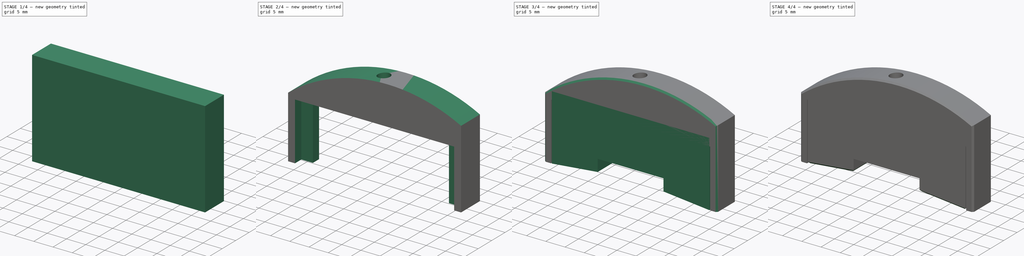
[diagram: build sequence overview — one tinted view per stage of 4, left to right]
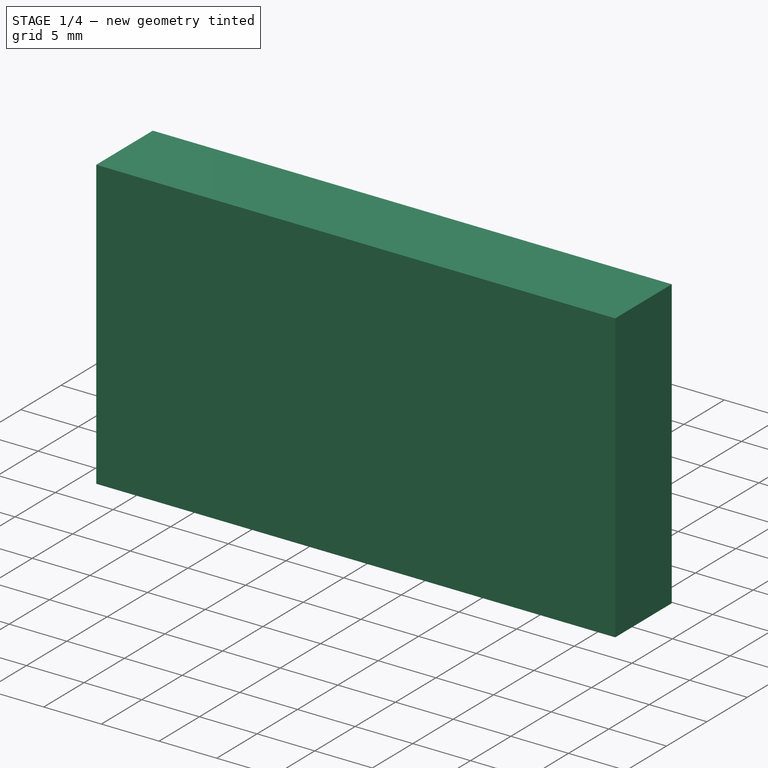
[diagram: stage 1 of 4 — iso view after this stage's code; geometry added in this stage tinted green]
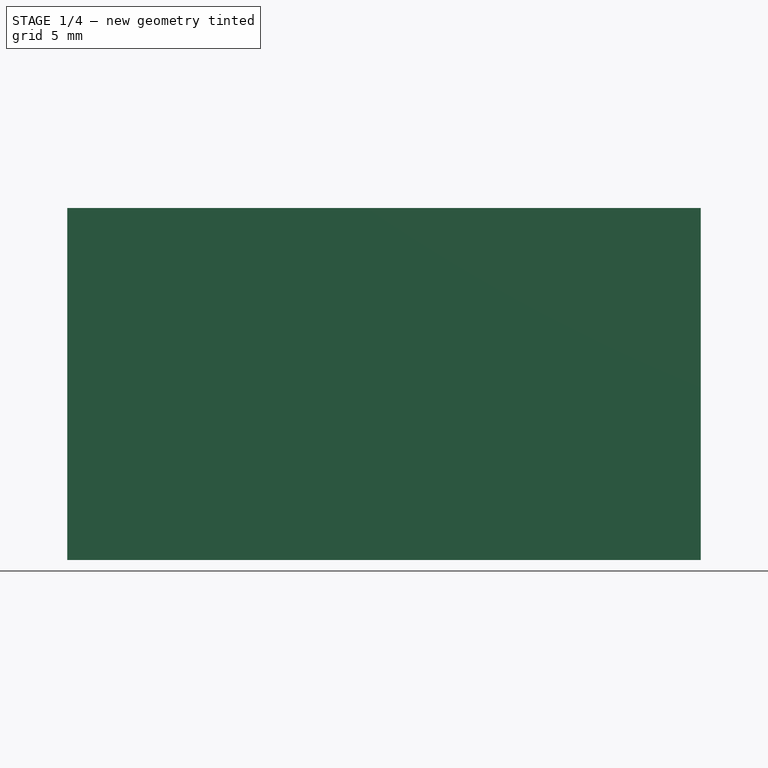
[diagram: stage 1 of 4 — front view after this stage's code; geometry added in this stage tinted green]
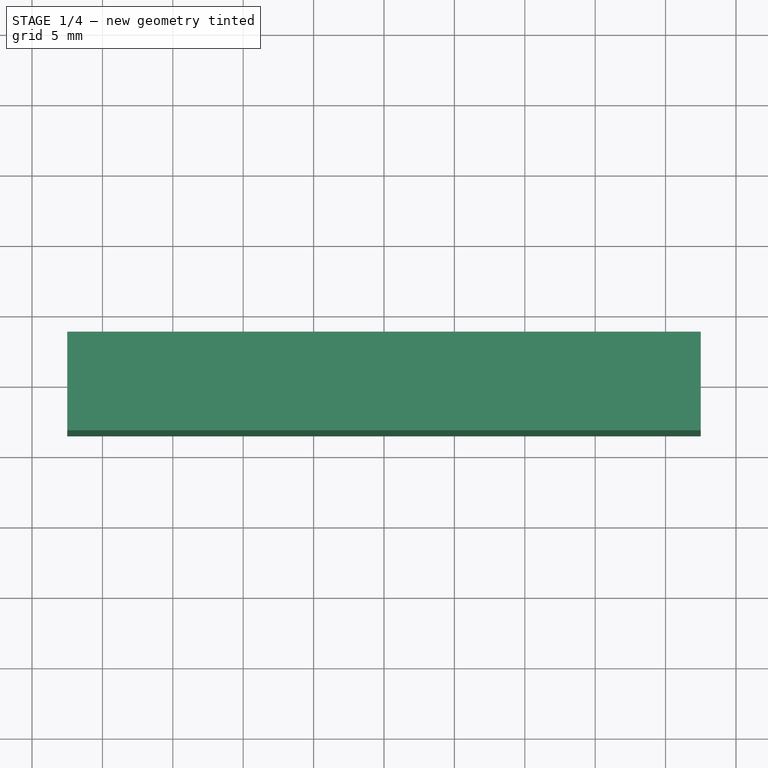
[diagram: stage 1 of 4 — top view after this stage's code; geometry added in this stage tinted green]
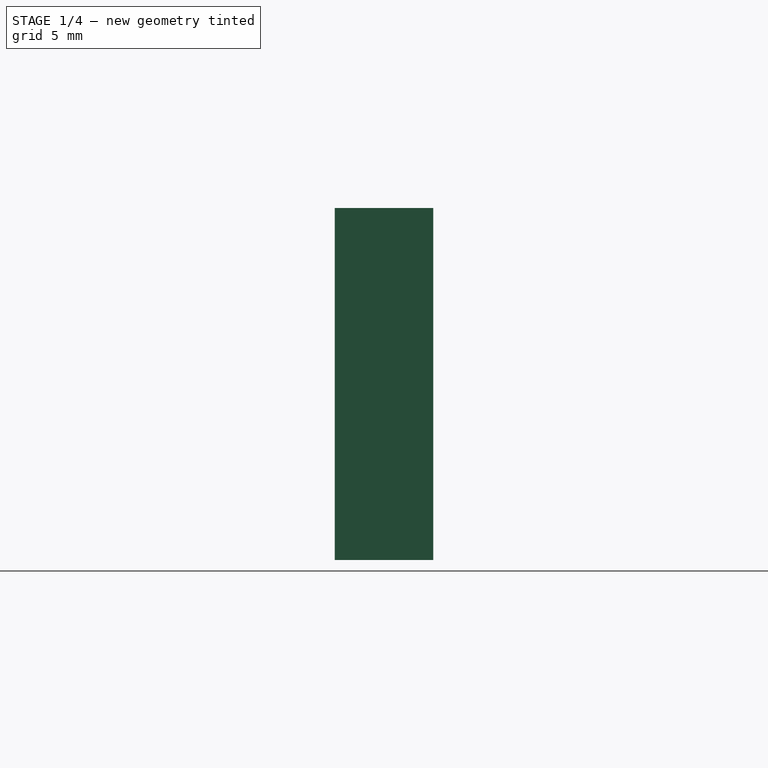
[diagram: stage 1 of 4 — right view after this stage's code; geometry added in this stage tinted green]
FCSTD DOCUMENT  (FreeCAD 1.0R39319 (Git))
Label: violin_string_lifter
License: All rights reserved
LicenseURL: https://en.wikipedia.org/wiki/All_rights_reserved
objects: Sketcher::SketchObject×8, PartDesign::Pocket×6, PartDesign::Pad×2, PartDesign::Chamfer×2, PartDesign::Body×2
note: 48 computed .brp shape members not serialized (recipe doc carries the construction recipe); baked Part::Feature solids carry a one-line shape summary decoded from their .brp

FEATURE [Sketcher::SketchObject] Sketch
  ArcFitTolerance = 1e-06
  AttachmentSupport = -> [XZ_Plane]
  FullyConstrained = true
  MakeInternals = false
  MapMode = 5
  Placement = pos=(0,0,0) rot=(1,0,0;1.5708rad)
  sketch-geometry (9):
    g0: LineSegment StartX=20.5 StartY=0 StartZ=0 EndX=8.56015 EndY=1.2 EndZ=0
    g1: LineSegment StartX=8.56015 StartY=1.2 StartZ=0 EndX=8.56015 EndY=4.3 EndZ=0
    g2: LineSegment StartX=-8.56015 StartY=1.2 StartZ=0 EndX=-8.56015 EndY=4.3 EndZ=0
    g3: LineSegment StartX=-8.56015 StartY=1.2 StartZ=0 EndX=-20.5 EndY=0 EndZ=0
    g4: LineSegment StartX=-8.56015 StartY=4.3 StartZ=0 EndX=8.56015 EndY=4.3 EndZ=0
    g5: GeomPoint X=0 Y=4.3 Z=0
    g6: LineSegment StartX=-20.5 StartY=0 StartZ=0 EndX=-20.5 EndY=17 EndZ=0
    g7: LineSegment StartX=20.5 StartY=0 StartZ=0 EndX=20.5 EndY=17 EndZ=0
    g8: LineSegment StartX=20.5 StartY=17 StartZ=0 EndX=-20.5 EndY=17 EndZ=0
  constraints (25):
    c: PointOnObject(g0,g-1)
    c: Coincident(g1,g0)
    c: Vertical(g1)
    c: Vertical(g2)
    c: Coincident(g3,g2)
    c: PointOnObject(g3,g-1)
    c: Coincident(g4,g2)
    c: Coincident(g4,g1)
    c: Horizontal(g4)
    c: PointOnObject(g5,g-2)
    c: Symmetric(g4,g4,g5)
    c: DistanceX(g3,g0) = 41
    c: Horizontal(g2,g0)
    c: DistanceY(g-1,g2) = 1.2
    c: Equal(g0,g3)
    c: Distance(g0) = 12
    c: DistanceY(g-1,g2) = 4.3
    c: Coincident(g6,g3)
    c: Vertical(g6)
    c: Coincident(g7,g0)
    c: Vertical(g7)
    c: Coincident(g8,g7)
    c: Coincident(g8,g6)
    c: Horizontal(g8)
    c: DistanceY(g6,g6) = 17
FEATURE [PartDesign::Pad] Pad
  Direction = (0,-1,2e-16)
  Length = 3.5
  Length2 = 3.5
  Placement = pos=(0,0,0) rot=(1,0,0;1.5708rad)
  Profile = -> Sketch
  ReferenceAxis = -> Sketch [N_Axis]
  Refine = true
  Suppressed = false
  Type = 4
FEATURE [Sketcher::SketchObject] Sketch002
  ArcFitTolerance = 1e-06
  AttachmentSupport = -> [XZ_Plane001]
  FullyConstrained = true
  MakeInternals = false
  MapMode = 5
  Placement = pos=(0,0,0) rot=(1,0,0;1.5708rad)
  sketch-geometry (4):
    g0: LineSegment StartX=-22.5 StartY=25 StartZ=0 EndX=-22.5 EndY=0 EndZ=0
    g1: LineSegment StartX=-22.5 StartY=-1e-16 StartZ=0 EndX=22.5 EndY=-1e-16 EndZ=0
    g2: LineSegment StartX=22.5 StartY=-1e-16 StartZ=0 EndX=22.5 EndY=25 EndZ=0
    g3: LineSegment StartX=22.5 StartY=25 StartZ=0 EndX=-22.5 EndY=25 EndZ=0
  constraints (11):
    c: Coincident(g0,g1)
    c: Coincident(g1,g2)
    c: Coincident(g2,g3)
    c: Coincident(g3,g0)
    c: Vertical(g0)
    c: Vertical(g2)
    c: Horizontal(g1)
    c: Horizontal(g3)
    c: Symmetric(g1,g1,g-1)
    c: DistanceX(g1,g1) = 45
    c: DistanceY(g0,g0) = 25
FEATURE [PartDesign::Pad] Pad001
  Direction = (0,-1,2e-16)
  Length = 3.5
  Length2 = 3.5
  Placement = pos=(0,0,0) rot=(1,0,0;1.5708rad)
  Profile = -> Sketch002
  ReferenceAxis = -> Sketch002 [N_Axis]
  Refine = true
  Suppressed = false
  Type = 4
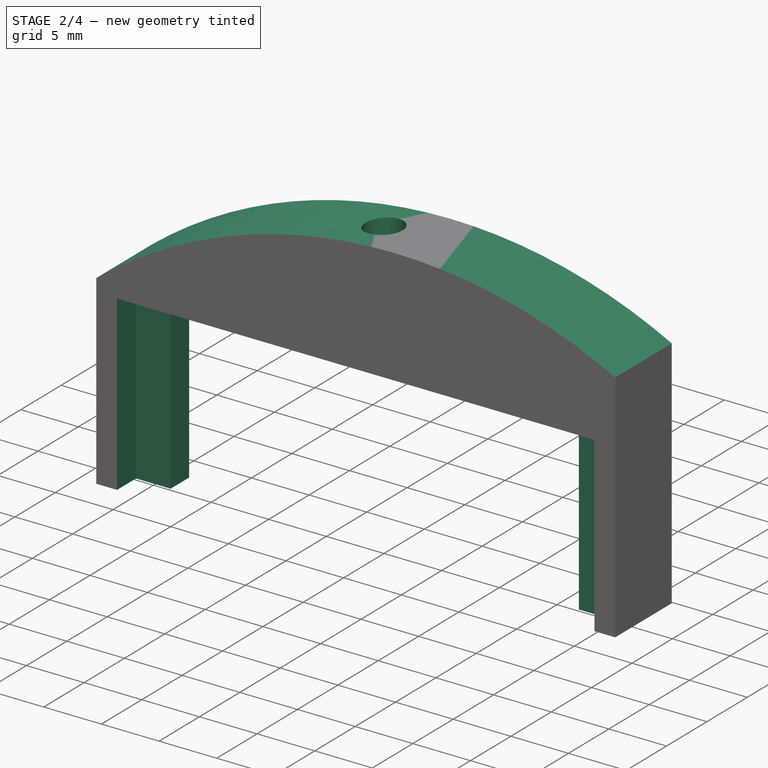
[diagram: stage 2 of 4 — iso view after this stage's code; geometry added in this stage tinted green]
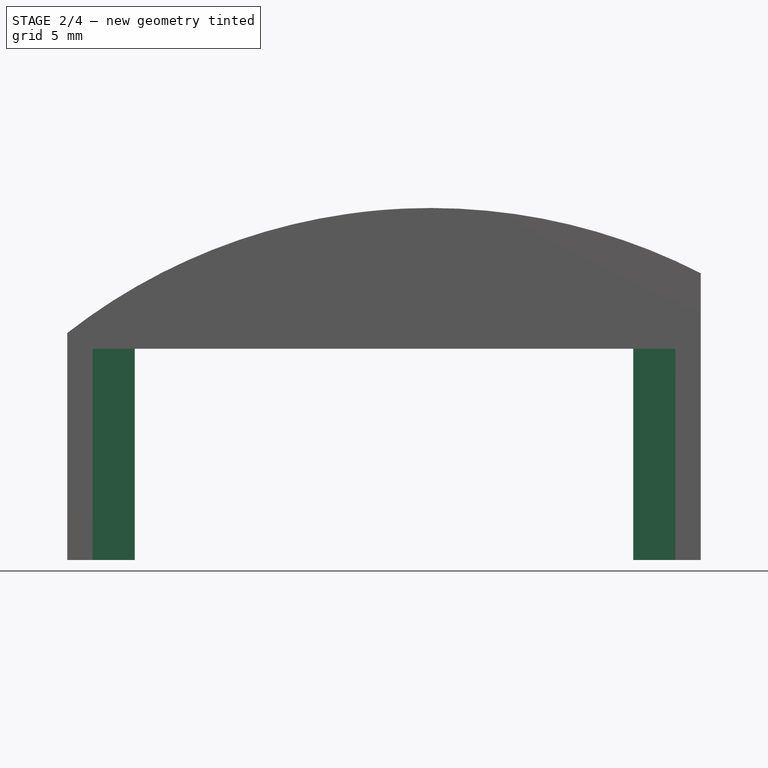
[diagram: stage 2 of 4 — front view after this stage's code; geometry added in this stage tinted green]
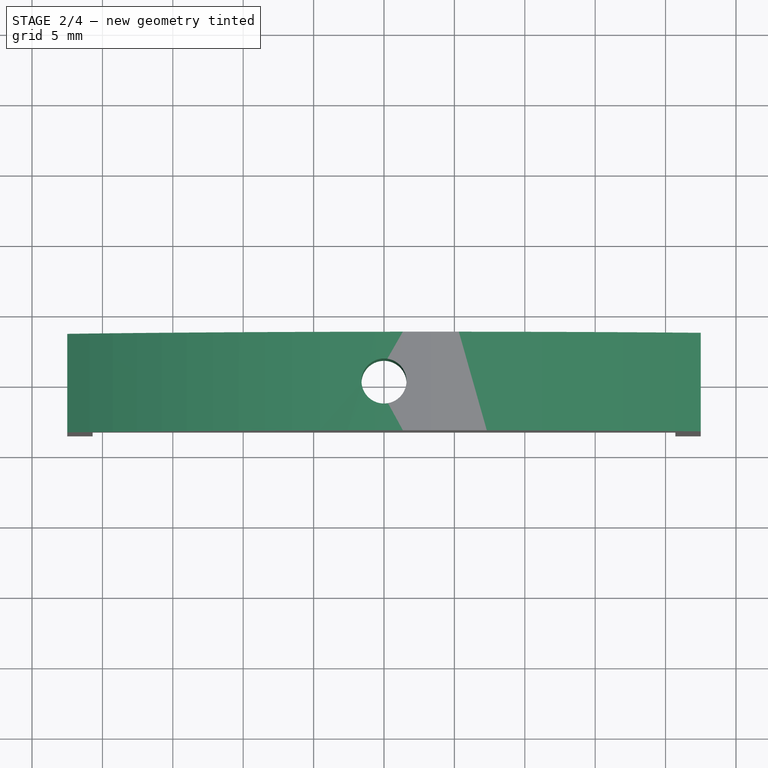
[diagram: stage 2 of 4 — top view after this stage's code; geometry added in this stage tinted green]
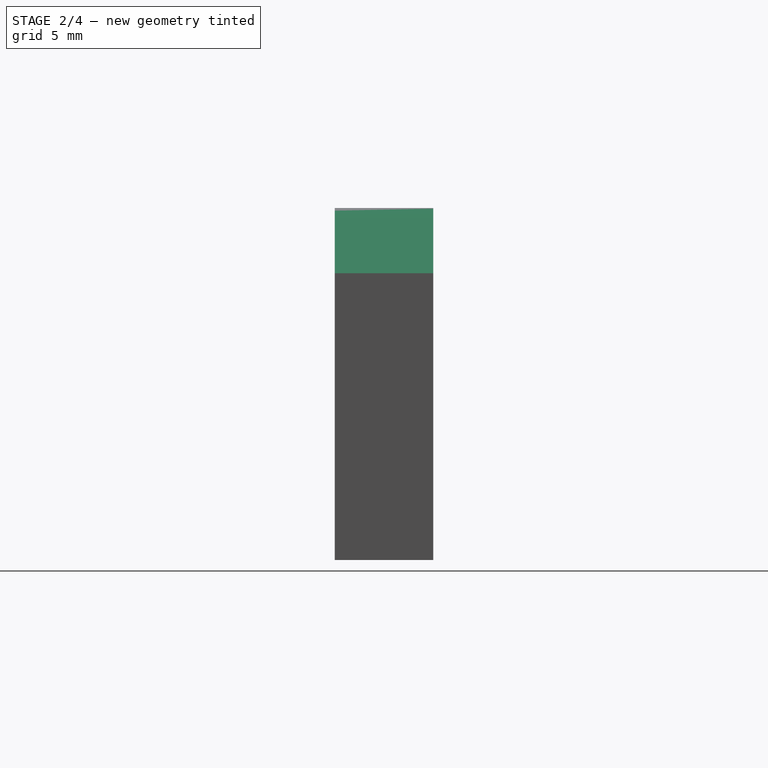
[diagram: stage 2 of 4 — right view after this stage's code; geometry added in this stage tinted green]
FEATURE [Sketcher::SketchObject] Sketch003
  ArcFitTolerance = 1e-06
  AttachmentSupport = -> [Pad001]
  FullyConstrained = true
  MakeInternals = false
  MapMode = 5
  Placement = pos=(0,0,-1e-16) rot=(1,0,0;3.14159rad)
  expr: Constraints[32] = Sketch001.Constraints.int_len + 0.4 mm
  expr: Constraints[37] = Sketch001.Constraints.out_len + 0.4 mm
  sketch-geometry (15):
    g0: LineSegment StartX=-17.7 StartY=1.15 StartZ=0 EndX=-17.7 EndY=-1.15 EndZ=0
    g1: LineSegment StartX=17.7 StartY=1.15 StartZ=0 EndX=17.7 EndY=-1.15 EndZ=0
    g2: GeomPoint X=-17.7 Y=0 Z=0
    g3: LineSegment StartX=-17.7 StartY=1.15 StartZ=0 EndX=-20.7 EndY=1.15 EndZ=0
    g4: LineSegment StartX=-20.7 StartY=1.15 StartZ=0 EndX=-20.7 EndY=5 EndZ=0
    g5: LineSegment StartX=-17.7 StartY=-1.15 StartZ=0 EndX=-20.7 EndY=-1.15 EndZ=0
    g6: LineSegment StartX=-20.7 StartY=-1.15 StartZ=0 EndX=-20.7 EndY=-5 EndZ=0
    g7: LineSegment StartX=17.7 StartY=1.15 StartZ=0 EndX=20.7 EndY=1.15 EndZ=0
    g8: LineSegment StartX=17.7 StartY=-1.15 StartZ=0 EndX=20.7 EndY=-1.15 EndZ=0
    g9: LineSegment StartX=20.7 StartY=-1.15 StartZ=0 EndX=20.7 EndY=-5 EndZ=0
    g10: LineSegment StartX=20.7 StartY=1.15 StartZ=0 EndX=20.7 EndY=5 EndZ=0
    g11: LineSegment StartX=20.7 StartY=5 StartZ=0 EndX=-20.7 EndY=5 EndZ=0
    g12: LineSegment StartX=-20.7 StartY=-5 StartZ=0 EndX=20.7 EndY=-5 EndZ=0
    g13: LineSegment [constr] StartX=-17.7 StartY=-1.15 StartZ=0 EndX=17.7 EndY=-1.15 EndZ=0
    g14: GeomPoint [constr] X=0 Y=-1.15 Z=0
  constraints (40):
    c: Vertical(g0)
    c: Vertical(g1)
    c: Horizontal(g0,g1)
    c: Horizontal(g1,g0)
    c: PointOnObject(g2,g-1)
    c: Symmetric(g0,g0,g2)
    c: DistanceY(g0,g0) = 2.3
    c: Coincident(g3,g0)
    c: Horizontal(g3)
    c: Coincident(g4,g3)
    c: Vertical(g4)
    c: Coincident(g5,g0)
    c: Horizontal(g5)
    c: Coincident(g6,g5)
    c: Vertical(g6)
    c: Vertical(g5,g3)
    c: Equal(g6,g4)
    c: Coincident(g7,g1)
    c: Horizontal(g7)
    c: Coincident(g8,g1)
    c: Horizontal(g8)
    c: Coincident(g9,g8)
    c: Vertical(g9)
    c: Coincident(g10,g7)
    c: Vertical(g10)
    c: Coincident(g11,g10)
    c: Coincident(g11,g4)
    c: Horizontal(g11)
    c: Coincident(g12,g6)
    c: Coincident(g12,g9)
    c: Horizontal(g12)
    c: Equal(g8,g7)
    c: DistanceX(g0,g1) = 35.4
    c: Coincident(g13,g0)
    c: Coincident(g13,g1)
    c: Symmetric(g13,g13,g14)
    c: PointOnObject(g14,g-2)
    c: DistanceX(g11,g11) = 41.4
    c: Equal(g7,g3)
    c: DistanceY(g6,g4) = 10
FEATURE [PartDesign::Pocket] Pocket001
  BaseFeature = -> Pad001
  Direction = (0,0,1)
  Length = 15
  Length2 = 5
  Placement = pos=(0,0,0) rot=(1,0,0;1.5708rad)
  Profile = -> Sketch003
  ReferenceAxis = -> Sketch003 [N_Axis]
  Refine = true
  Suppressed = false
  Type = 0
FEATURE [Sketcher::SketchObject] Sketch004
  ArcFitTolerance = 1e-06
  AttachmentSupport = -> [Pocket001]
  FullyConstrained = true
  MakeInternals = false
  MapMode = 5
  Placement = pos=(0,1.1e-14,25) rot=(0,0,1;3.14159rad)
  sketch-geometry (1):
    g0: Circle CenterX=0 CenterY=0 CenterZ=0 NormalX=0 NormalY=0 NormalZ=1 AngleXU=0 Radius=1.6
  constraints (2):
    c: Coincident(g0,g-1)
    c: Diameter(g0) = 3.2
FEATURE [PartDesign::Pocket] Pocket002
  BaseFeature = -> Pocket001
  Direction = (0,0,-1)
  Length = 11
  Length2 = 5
  Placement = pos=(0,0,0) rot=(1,0,0;1.5708rad)
  Profile = -> Sketch004 [Edge1]
  ReferenceAxis = -> Sketch004 [N_Axis]
  Refine = true
  Suppressed = false
  Type = 0
FEATURE [Sketcher::SketchObject] Sketch005
  ArcFitTolerance = 1e-06
  AttachmentSupport = -> [Pocket002]
  ExternalGeometry = -> [Pocket002]
  FullyConstrained = true
  MakeInternals = false
  MapMode = 5
  Placement = pos=(0,-3.5,0) rot=(1,0,0;1.5708rad)
  sketch-geometry (7):
    g0: Circle [constr] CenterX=0 CenterY=-21.9103 CenterZ=0 NormalX=0 NormalY=0 NormalZ=1 AngleXU=0 Radius=42
    g1: ArcOfCircle CenterX=3.32402 CenterY=-17 CenterZ=0 NormalX=0 NormalY=0 NormalZ=1 AngleXU=0 Radius=42 StartAngle=1.09666 EndAngle=2.233
    g2: LineSegment [constr] StartX=-17 StartY=19.7551 StartZ=0 EndX=-15.8667 EndY=16.9774 EndZ=0
    g3: LineSegment [constr] StartX=14.9529 StartY=17.3378 StartZ=0 EndX=17 EndY=22.711 EndZ=0
    g4: LineSegment StartX=-22.5 StartY=16.1228 StartZ=0 EndX=-22.5 EndY=40.3669 EndZ=0
    g5: LineSegment StartX=-22.5 StartY=40.3669 StartZ=0 EndX=22.5 EndY=40.3669 EndZ=0
    g6: LineSegment StartX=22.5 StartY=20.3669 StartZ=0 EndX=22.5 EndY=40.3669 EndZ=0
  constraints (24):
    c: PointOnObject(g0,g-2)
    c: Radius(g0) = 42
    c: Radius(g1) = 42
    c: PointOnObject(g2,g1)
    c: PointOnObject(g2,g0)
    c: Perpendicular(g0,g2)
    c: Distance(g2) = 3
    c: PointOnObject(g3,g0)
    c: PointOnObject(g3,g1)
    c: Distance(g3) = 5.75
    c: Perpendicular(g0,g3)
    c: DistanceX(g-1,g3) = 17
    c: DistanceX(g2,g-1) = 17
    c: Coincident(g4,g1)
    c: Vertical(g4)
    c: Coincident(g5,g4)
    c: Horizontal(g5)
    c: Coincident(g6,g1)
    c: Coincident(g6,g5)
    c: Vertical(g6)
    c: DistanceY(g6,g6) = 20
    c: PointOnObject(g-3,g4)
    c: PointOnObject(g-3,g6)
    c: Tangent(g1,g-3)
FEATURE [PartDesign::Pocket] Pocket003
  BaseFeature = -> Pocket002
  Direction = (0,1,-2e-16)
  Length = 20
  Length2 = 20
  Placement = pos=(0,0,0) rot=(1,0,0;1.5708rad)
  Profile = -> Sketch005
  ReferenceAxis = -> Sketch005 [N_Axis]
  Refine = true
  Suppressed = false
  Type = 4
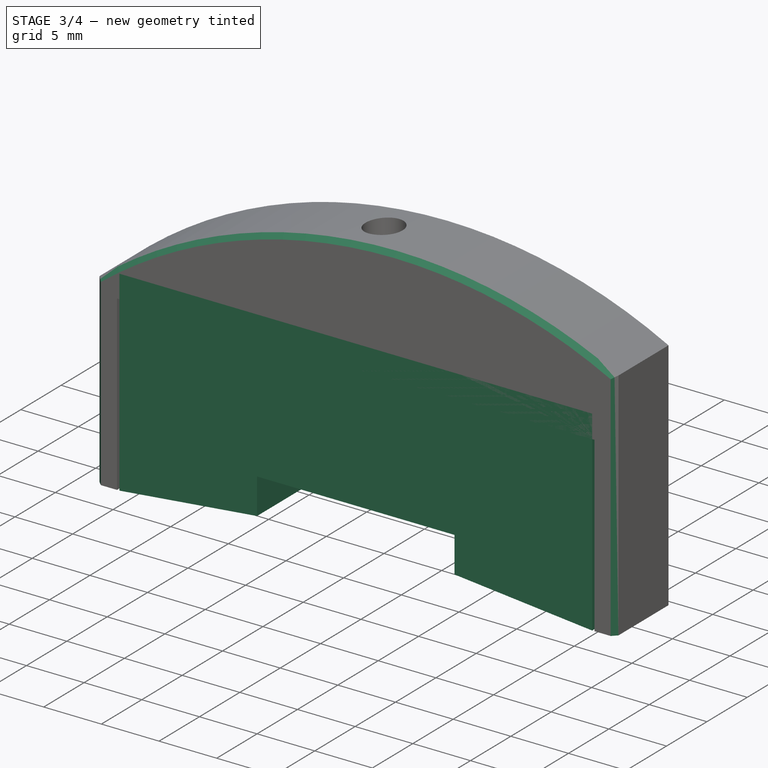
[diagram: stage 3 of 4 — iso view after this stage's code; geometry added in this stage tinted green]
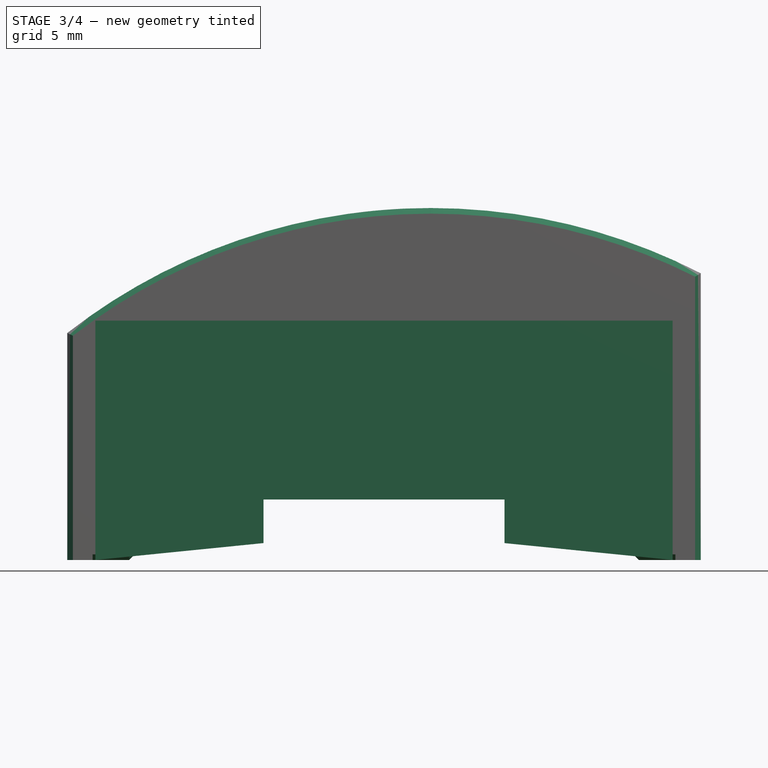
[diagram: stage 3 of 4 — front view after this stage's code; geometry added in this stage tinted green]
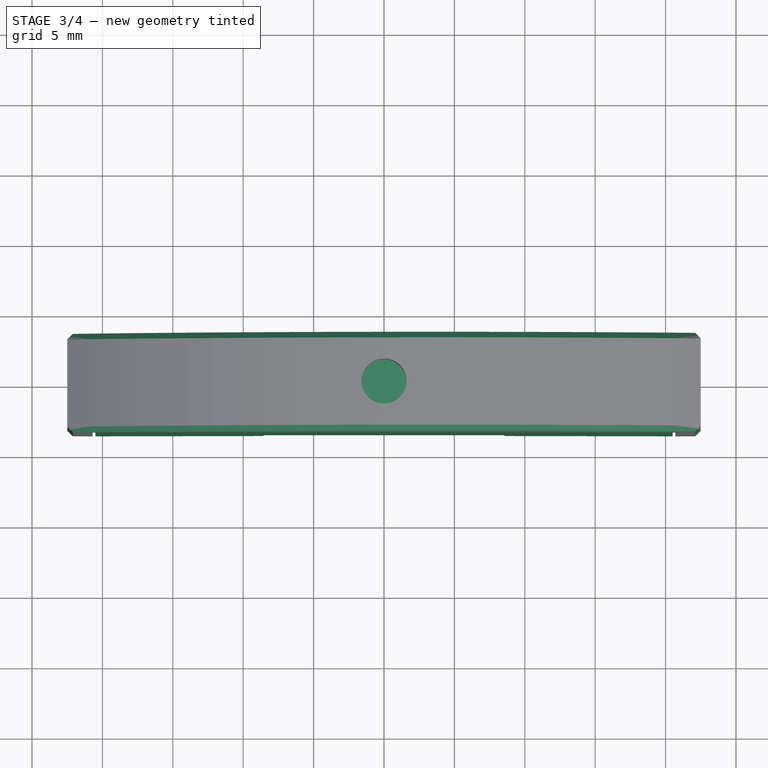
[diagram: stage 3 of 4 — top view after this stage's code; geometry added in this stage tinted green]
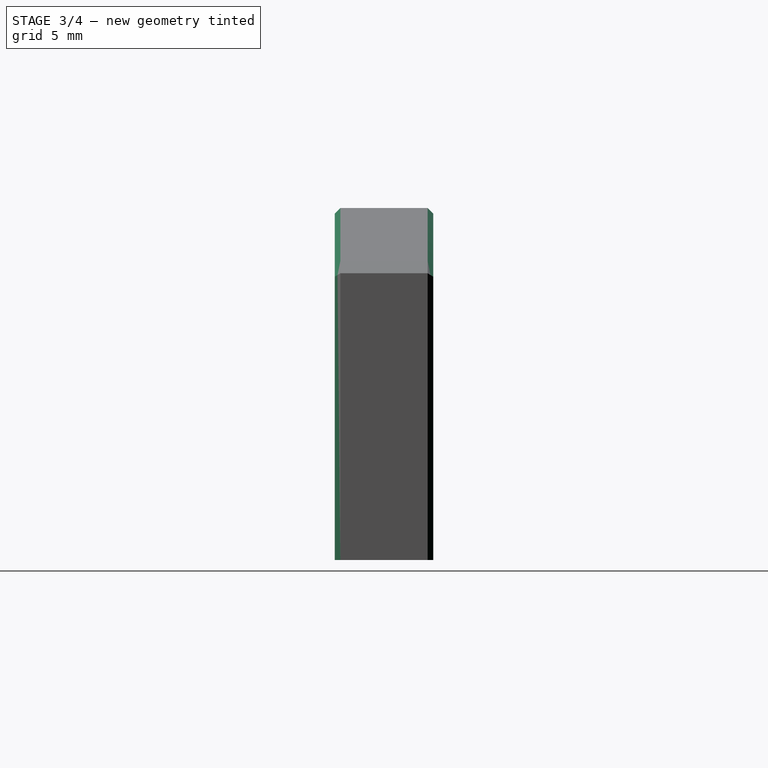
[diagram: stage 3 of 4 — right view after this stage's code; geometry added in this stage tinted green]
FEATURE [Sketcher::SketchObject] Sketch001
  ArcFitTolerance = 1e-06
  AttachmentSupport = -> [Pad]
  ExternalGeometry = -> [Pad]
  FullyConstrained = true
  MakeInternals = false
  MapMode = 5
  Placement = pos=(0,7.5e-15,17) rot=(0,0,1;3.14159rad)
  sketch-geometry (10):
    g0: LineSegment StartX=-20.5 StartY=1.5 StartZ=0 EndX=-20.5 EndY=-1.5 EndZ=0
    g1: LineSegment StartX=-20.5 StartY=-1.5 StartZ=0 EndX=-17.5 EndY=-1.5 EndZ=0
    g2: LineSegment StartX=-17.5 StartY=-1.5 StartZ=0 EndX=-17.5 EndY=1.5 EndZ=0
    g3: LineSegment StartX=-17.5 StartY=1.5 StartZ=0 EndX=-20.5 EndY=1.5 EndZ=0
    g4: LineSegment StartX=20.5 StartY=1.5 StartZ=0 EndX=17.5 EndY=1.5 EndZ=0
    g5: LineSegment StartX=17.5 StartY=1.5 StartZ=0 EndX=17.5 EndY=-1.5 EndZ=0
    g6: LineSegment StartX=17.5 StartY=-1.5 StartZ=0 EndX=20.5 EndY=-1.5 EndZ=0
    g7: LineSegment StartX=20.5 StartY=-1.5 StartZ=0 EndX=20.5 EndY=1.5 EndZ=0
    g8: LineSegment [constr] StartX=-20.5 StartY=1.5 StartZ=0 EndX=-20.5 EndY=3.5 EndZ=0
    g9: LineSegment [constr] StartX=-20.5 StartY=-3.5 StartZ=0 EndX=-20.5 EndY=-1.5 EndZ=0
  constraints (30):
    c: Coincident(g0,g1)
    c: Coincident(g1,g2)
    c: Coincident(g2,g3)
    c: Coincident(g3,g0)
    c: Vertical(g0)
    c: Vertical(g2)
    c: Horizontal(g1)
    c: Horizontal(g3)
    c: Coincident(g4,g5)
    c: Coincident(g5,g6)
    c: Coincident(g6,g7)
    c: Coincident(g7,g4)
    c: Horizontal(g4)
    c: Horizontal(g6)
    c: Vertical(g5)
    c: Vertical(g7)
    c: PointOnObject(g6,g-4)
    c: PointOnObject(g0,g-3)
    c: Coincident(g8,g0)
    c: Coincident(g8,g-3)
    c: Coincident(g9,g-3)
    c: Coincident(g9,g0)
    c: Equal(g9,g8)
    c: Horizontal(g5,g1)
    c: Horizontal(g4,g2)
    c: Equal(g3,g4)
    c: DistanceX(g3,g3) = 3
    c: DistanceY(g2,g2) = 3
    c: DistanceX(g2,g4) = 35  'int_len'
    c: DistanceX(g8,g-4) = 41  'out_len'
FEATURE [PartDesign::Pocket] Pocket
  BaseFeature = -> Pad
  Direction = (0,0,-1)
  Length = 20
  Length2 = 5
  Placement = pos=(0,0,0) rot=(1,0,0;1.5708rad)
  Profile = -> Sketch001
  ReferenceAxis = -> Sketch001 [N_Axis]
  Refine = true
  Suppressed = false
  Type = 0
FEATURE [PartDesign::Body] Body  label="Bottom"
  AllowCompound = false
  Group = -> [Sketch,Pad,Sketch001,Pocket,Sketch006,Pocket004,Chamfer]
  Origin = -> Origin
  Tip = -> Chamfer
FEATURE [PartDesign::Chamfer] Chamfer001
  Angle = 45
  Base = -> Pocket003 [Edge16,Edge14,Edge15,Edge44,Edge43,Edge42,Edge1,Edge3,Edge10,Edge23,Edge25,Edge24,Edge11,Edge12,Edge46,Edge47,Edge52,Edge53]
  BaseFeature = -> Pocket003
  ChamferType = 0
  FlipDirection = false
  Placement = pos=(0,0,0) rot=(1,0,0;1.5708rad)
  Refine = true
  Size = 0.4
  Size2 = 1
  SupportTransform = false
  Suppressed = false
  UseAllEdges = false
FEATURE [Sketcher::SketchObject] Sketch007
  ArcFitTolerance = 1e-06
  AttachmentSupport = -> [Chamfer001]
  FullyConstrained = true
  MakeInternals = false
  MapMode = 5
  Placement = pos=(0,0,15) rot=(1,0,0;3.14159rad)
  sketch-geometry (1):
    g0: Circle CenterX=0 CenterY=0 CenterZ=0 NormalX=0 NormalY=0 NormalZ=1 AngleXU=0 Radius=2.1
  constraints (2):
    c: Coincident(g0,g-1)
    c: Diameter(g0) = 4.2
FEATURE [PartDesign::Pocket] Pocket005
  BaseFeature = -> Chamfer001
  Direction = (0,0,1)
  Length = 6
  Length2 = 5
  Placement = pos=(0,0,0) rot=(1,0,0;1.5708rad)
  Profile = -> Sketch007
  ReferenceAxis = -> Sketch007 [N_Axis]
  Refine = true
  Suppressed = false
  Type = 0
FEATURE [PartDesign::Body] Body001  label="Top"
  AllowCompound = false
  Group = -> [Sketch002,Pad001,Sketch003,Pocket001,Sketch004,Pocket002,Sketch005,Pocket003,Chamfer001,Sketch007,Pocket005]
  Origin = -> Origin001
  Placement = pos=(0,0,15.7) rot=(0,0,1;0rad)
  Tip = -> Pocket005
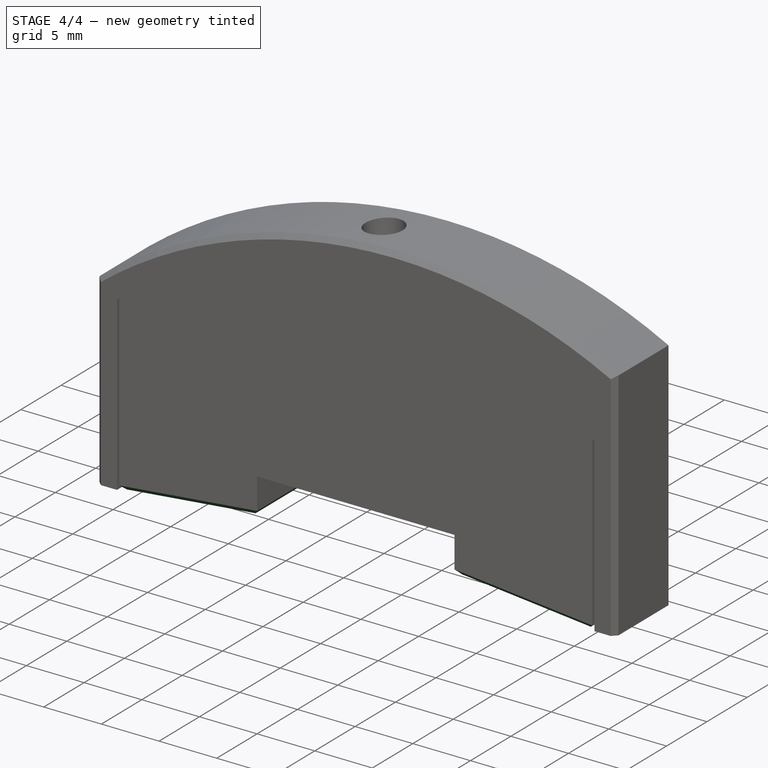
[diagram: stage 4 of 4 — iso view after this stage's code; geometry added in this stage tinted green]
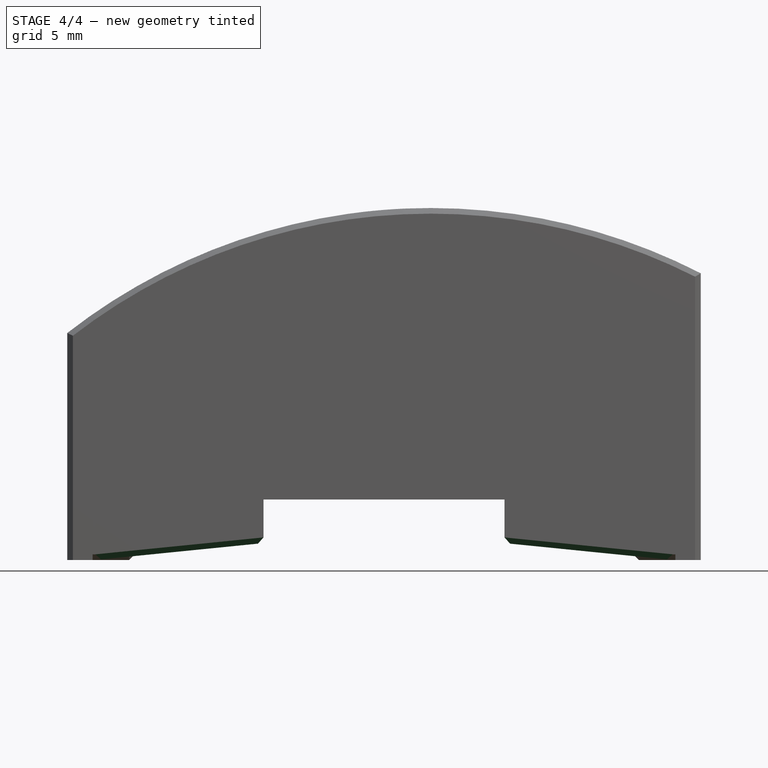
[diagram: stage 4 of 4 — front view after this stage's code; geometry added in this stage tinted green]
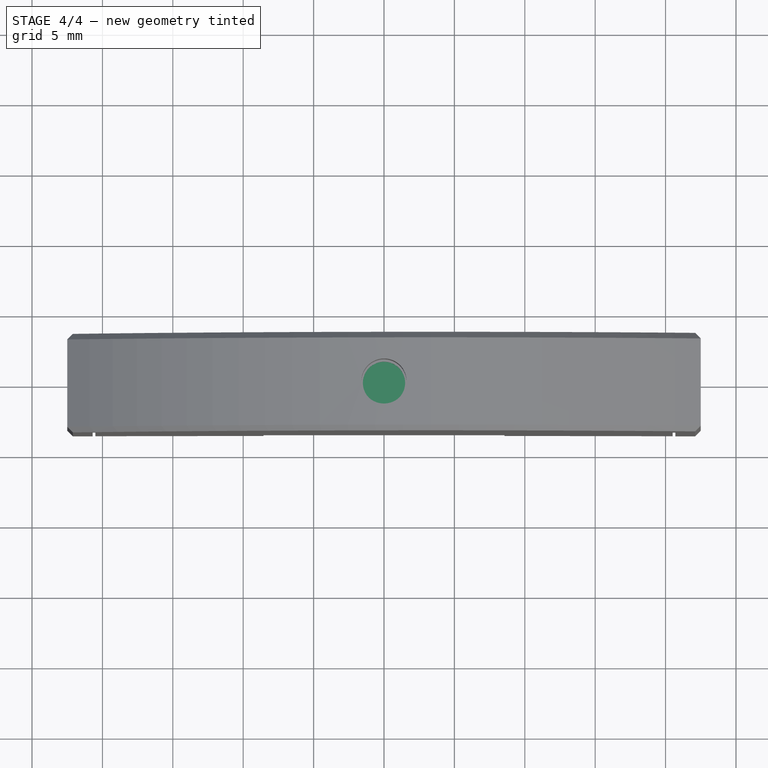
[diagram: stage 4 of 4 — top view after this stage's code; geometry added in this stage tinted green]
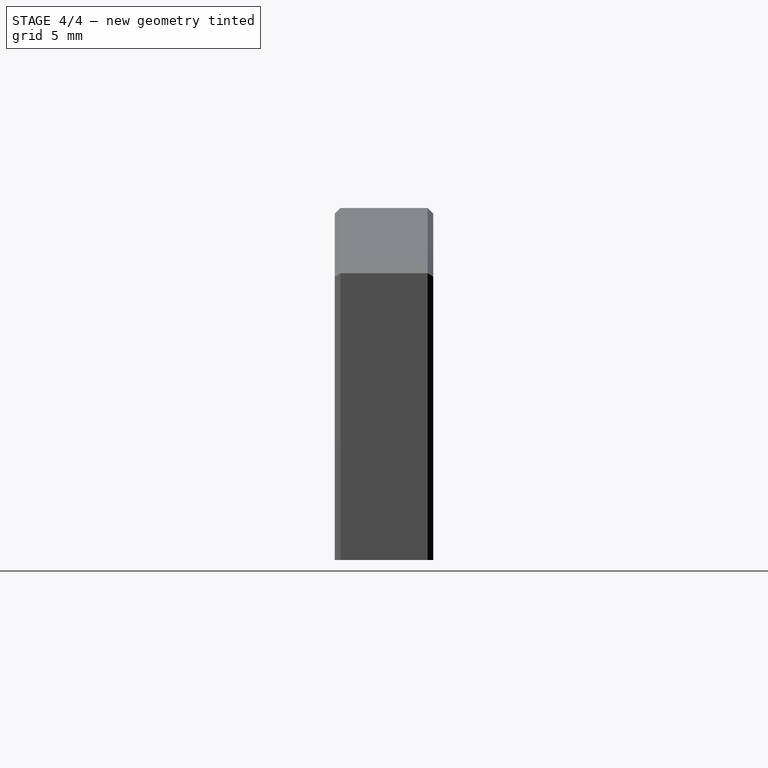
[diagram: stage 4 of 4 — right view after this stage's code; geometry added in this stage tinted green]
FEATURE [Sketcher::SketchObject] Sketch006
  ArcFitTolerance = 1e-06
  AttachmentSupport = -> [Pocket]
  FullyConstrained = true
  MakeInternals = false
  MapMode = 5
  Placement = pos=(0,7.5e-15,17) rot=(0,0,1;3.14159rad)
  sketch-geometry (1):
    g0: Circle CenterX=0 CenterY=0 CenterZ=0 NormalX=0 NormalY=0 NormalZ=1 AngleXU=0 Radius=1.5
  constraints (2):
    c: Coincident(g0,g-1)
    c: Diameter(g0) = 3
FEATURE [PartDesign::Pocket] Pocket004
  BaseFeature = -> Pocket
  Direction = (0,0,-1)
  Length = 0.5
  Length2 = 5
  Placement = pos=(0,0,0) rot=(1,0,0;1.5708rad)
  Profile = -> Sketch006
  ReferenceAxis = -> Sketch006 [N_Axis]
  Refine = true
  Suppressed = false
  Type = 0
FEATURE [PartDesign::Chamfer] Chamfer
  Angle = 45
  Base = -> Pocket004 [Edge3,Edge4,Edge5,Edge6,Edge7,Edge8,Edge1,Edge2,Edge34,Edge20,Edge12,Edge35,Edge36,Edge37,Edge38,Edge39]
  BaseFeature = -> Pocket004
  ChamferType = 0
  FlipDirection = false
  Placement = pos=(0,0,0) rot=(1,0,0;1.5708rad)
  Refine = true
  Size = 0.4
  Size2 = 1
  SupportTransform = false
  Suppressed = false
  UseAllEdges = false
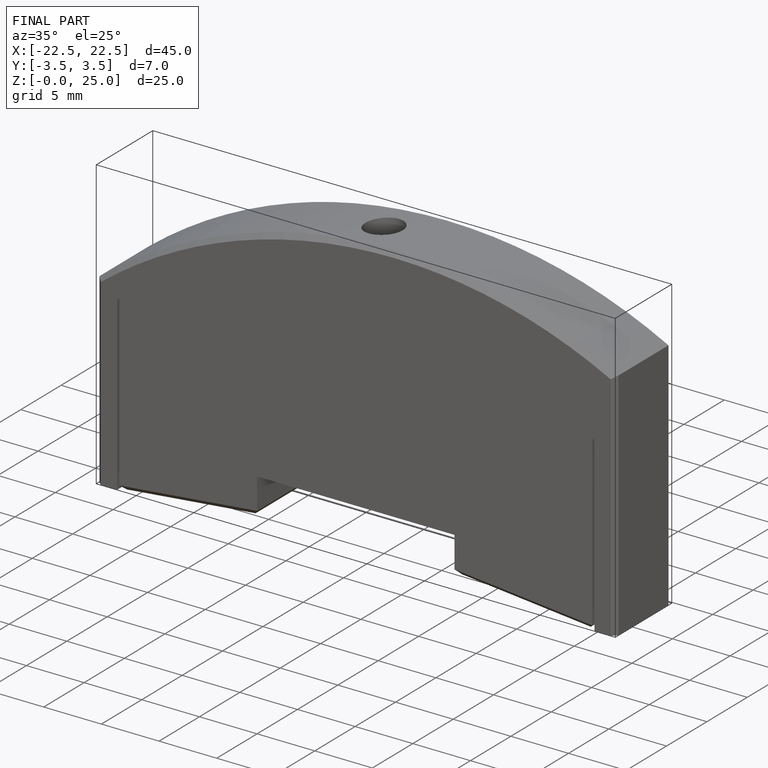
[diagram: finished part — iso view with bounding-box wireframe]
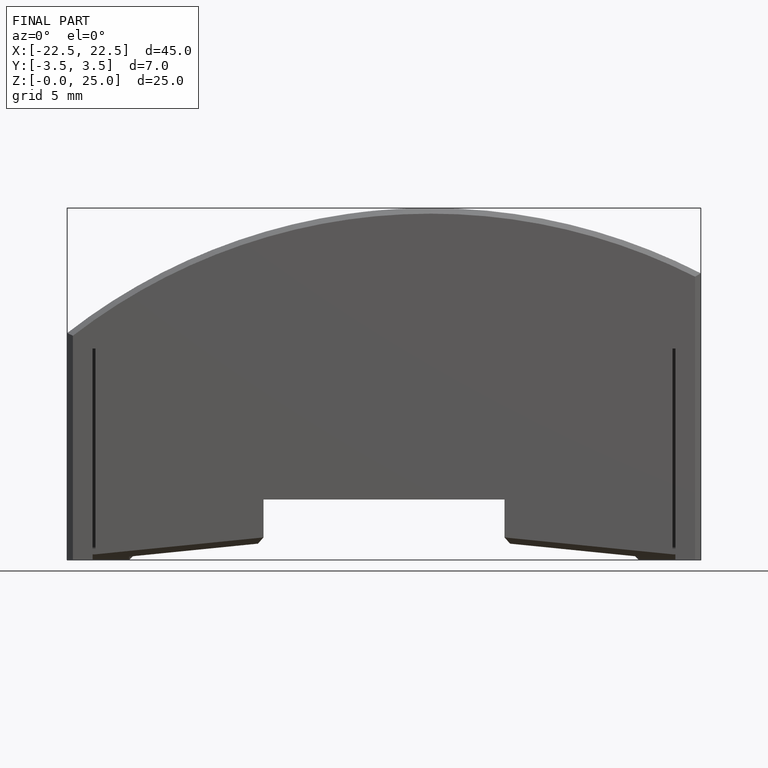
[diagram: finished part — front view with bounding-box wireframe]
